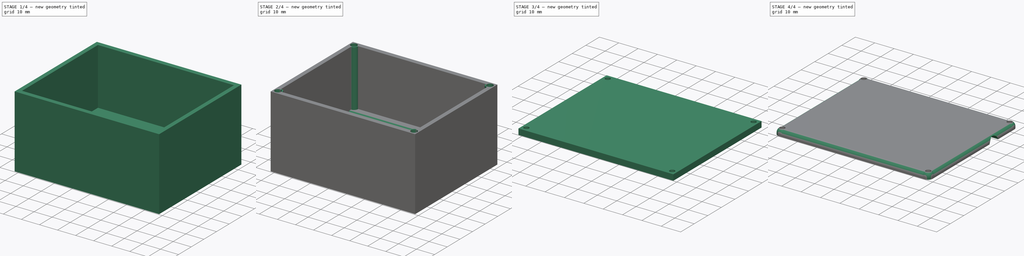
[diagram: build sequence overview — one tinted view per stage of 4, left to right]
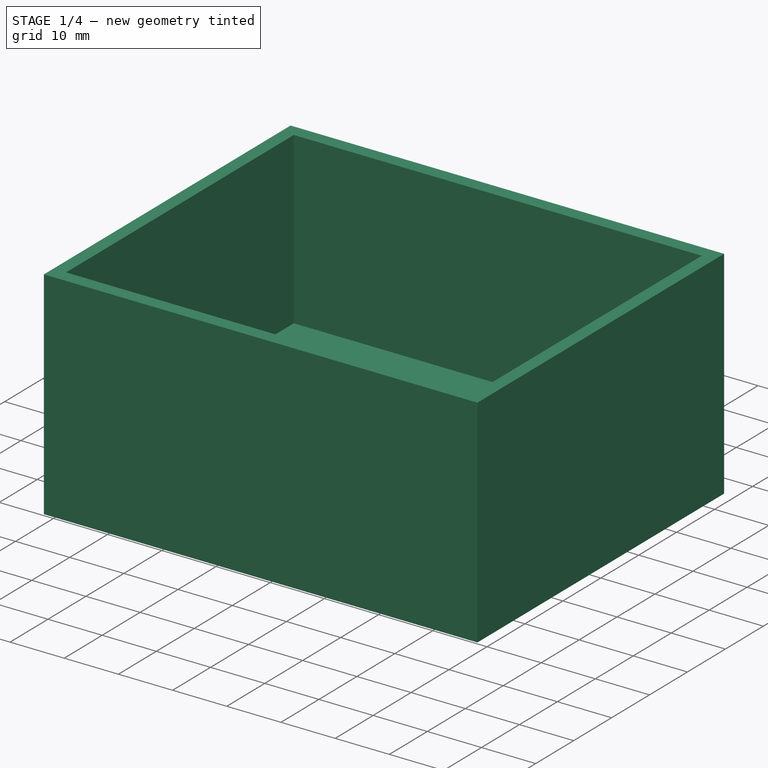
[diagram: stage 1 of 4 — iso view after this stage's code; geometry added in this stage tinted green]
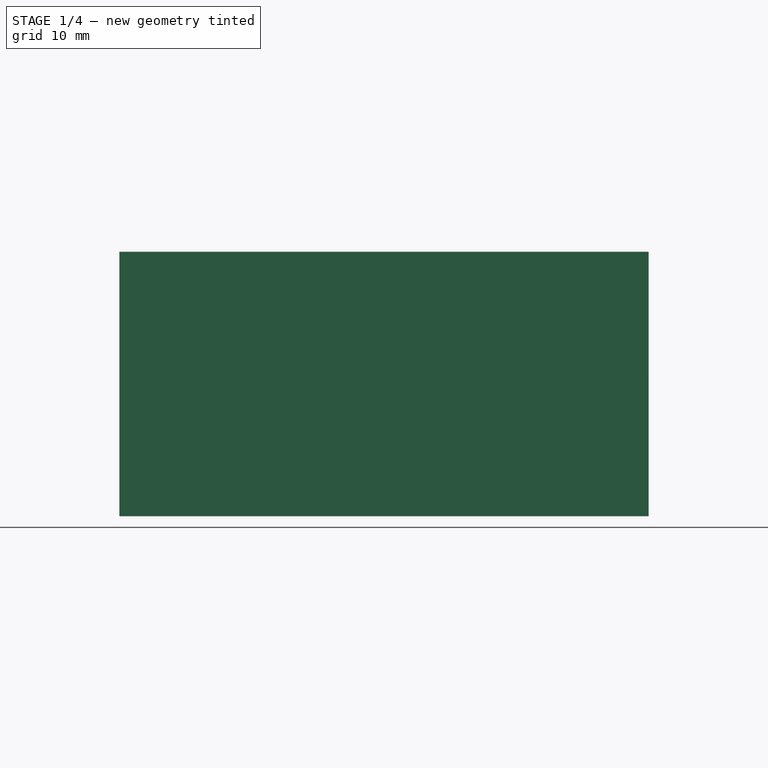
[diagram: stage 1 of 4 — front view after this stage's code; geometry added in this stage tinted green]
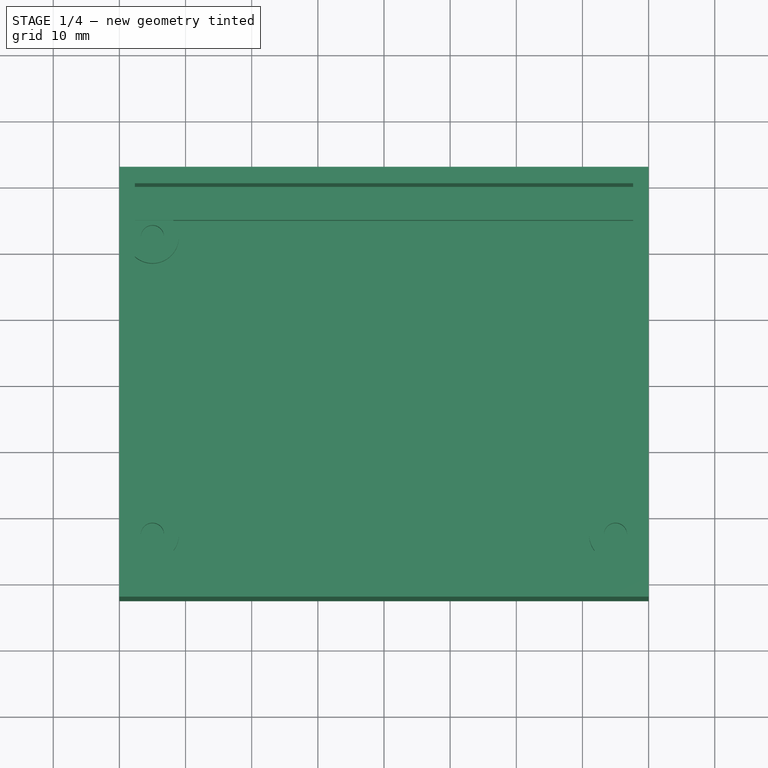
[diagram: stage 1 of 4 — top view after this stage's code; geometry added in this stage tinted green]
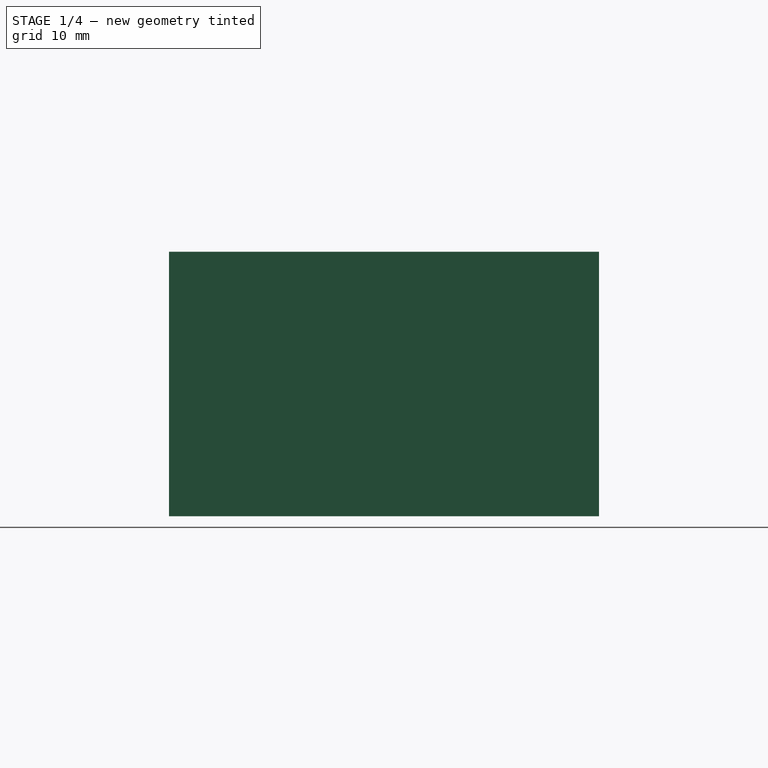
[diagram: stage 1 of 4 — right view after this stage's code; geometry added in this stage tinted green]
FCSTD DOCUMENT  (FreeCAD 1.0R39285 (Git))
Label: irrigation-controller-box
License: All rights reserved
LicenseURL: https://en.wikipedia.org/wiki/All_rights_reserved
objects: Sketcher::SketchObject×10, PartDesign::Pad×5, PartDesign::Pocket×4, PartDesign::Fillet×3, PartDesign::Chamfer×2, PartDesign::Body×2, PartDesign::ShapeBinder×1
note: 65 computed .brp shape members not serialized (recipe doc carries the construction recipe); baked Part::Feature solids carry a one-line shape summary decoded from their .brp

FEATURE [Sketcher::SketchObject] Sketch  label="Board"
  ArcFitTolerance = 1e-06
  AttachmentSupport = -> [XY_Plane]
  FullyConstrained = true
  MakeInternals = false
  MapMode = 5
  sketch-geometry (4):
    g0: LineSegment StartX=37.5 StartY=25 StartZ=0 EndX=-37.5 EndY=25 EndZ=0
    g1: LineSegment StartX=-37.5 StartY=25 StartZ=0 EndX=-37.5 EndY=-25 EndZ=0
    g2: LineSegment StartX=-37.5 StartY=-25 StartZ=0 EndX=37.5 EndY=-25 EndZ=0
    g3: LineSegment StartX=37.5 StartY=-25 StartZ=0 EndX=37.5 EndY=25 EndZ=0
  constraints (10):
    c: Coincident(g0,g1)
    c: Coincident(g1,g2)
    c: Coincident(g2,g3)
    c: Coincident(g3,g0)
    c: Horizontal(g2)
    c: Vertical(g3)
    c: DistanceX(g0,g0) = 75
    c: DistanceY(g1,g1) = 50
    c: Symmetric(g0,g1,g-1)
    c: Symmetric(g0,g0,g-2)
FEATURE [Sketcher::SketchObject] Sketch001  label="Box"
  ArcFitTolerance = 1e-06
  AttachmentSupport = -> [XY_Plane]
  ExternalGeometry = -> [Sketch]
  FullyConstrained = true
  MakeInternals = false
  MapMode = 5
  expr: Constraints[9] = .Constraints.thickness + 5 mm
  sketch-geometry (4):
    g0: LineSegment StartX=-40 StartY=32.5 StartZ=0 EndX=-40 EndY=-32.5 EndZ=0
    g1: LineSegment StartX=-40 StartY=-32.5 StartZ=0 EndX=40 EndY=-32.5 EndZ=0
    g2: LineSegment StartX=40 StartY=-32.5 StartZ=0 EndX=40 EndY=32.5 EndZ=0
    g3: LineSegment StartX=40 StartY=32.5 StartZ=0 EndX=-40 EndY=32.5 EndZ=0
  constraints (10):
    c: Coincident(g0,g1)
    c: Coincident(g1,g2)
    c: Coincident(g2,g3)
    c: Coincident(g3,g0)
    c: Vertical(g2)
    c: Horizontal(g1)
    c: Symmetric(g0,g2,g-2)
    c: Symmetric(g0,g0,g-1)
    c: Distance(g0,g-3) = 2.5  'thickness'
    c: Distance(g3,g-4) = 7.5
FEATURE [PartDesign::Pad] Pad  label="Box root"
  Direction = (0,0,1)
  Length = 40
  Length2 = 10
  Profile = -> Sketch001
  ReferenceAxis = -> Sketch001 [N_Axis]
  Refine = true
  Suppressed = false
  Type = 0
FEATURE [Sketcher::SketchObject] Sketch002
  ArcFitTolerance = 1e-06
  AttachmentSupport = -> [Pad]
  ExternalGeometry = -> [Sketch,Pad]
  FullyConstrained = true
  MakeInternals = false
  MapMode = 5
  Placement = pos=(0,0,40) rot=(0,0,1;0rad)
  expr: Constraints[6] = <<Box>>.Constraints.thickness
  sketch-geometry (4):
    g0: LineSegment StartX=-37.65 StartY=30 StartZ=0 EndX=-37.65 EndY=-30 EndZ=0
    g1: LineSegment StartX=-37.65 StartY=-30 StartZ=0 EndX=37.65 EndY=-30 EndZ=0
    g2: LineSegment StartX=37.65 StartY=-30 StartZ=0 EndX=37.65 EndY=30 EndZ=0
    g3: LineSegment StartX=37.65 StartY=30 StartZ=0 EndX=-37.65 EndY=30 EndZ=0
  constraints (10):
    c: Coincident(g0,g1)
    c: Coincident(g1,g2)
    c: Coincident(g2,g3)
    c: Coincident(g3,g0)
    c: Vertical(g2)
    c: Horizontal(g1)
    c: Distance(g-7,g3) = 2.5
    c: Symmetric(g0,g0,g-1)
    c: Distance(g-4,g0) = 0.15
    c: Symmetric(g0,g2,g-2)
FEATURE [PartDesign::Pocket] Pocket  label="Board hole"
  BaseFeature = -> Pad
  Direction = (0,0,-1)
  Length = 0
  Length2 = 5
  Offset = -2
  Profile = -> Sketch002
  ReferenceAxis = -> Sketch002 [N_Axis]
  Refine = true
  Suppressed = false
  Type = 3
  UpToFace = -> Pad [Face5]
FEATURE [Sketcher::SketchObject] Sketch003
  ArcFitTolerance = 1e-06
  AttachmentSupport = -> [Pocket]
  ExternalGeometry = -> [Sketch]
  FullyConstrained = true
  MakeInternals = false
  MapMode = 5
  Placement = pos=(0,0,2) rot=(0,0,1;0rad)
  expr: Constraints[10] = .Constraints.nut_d
  expr: Constraints[11] = .Constraints.support_d
  expr: Constraints[1] = .Constraints.center_offset
  expr: Constraints[7] = .Constraints.nut_d
  expr: Constraints[8] = .Constraints.support_d
  sketch-geometry (6):
    g0: Circle CenterX=-35 CenterY=22.5 CenterZ=0 NormalX=0 NormalY=0 NormalZ=1 AngleXU=0 Radius=4
    g1: Circle CenterX=-35 CenterY=22.5 CenterZ=0 NormalX=0 NormalY=0 NormalZ=1 AngleXU=0 Radius=1.75
    g2: Circle CenterX=-35 CenterY=-22.5 CenterZ=0 NormalX=0 NormalY=0 NormalZ=1 AngleXU=0 Radius=4
    g3: Circle CenterX=-35 CenterY=-22.5 CenterZ=0 NormalX=0 NormalY=0 NormalZ=1 AngleXU=0 Radius=1.75
    g4: Circle CenterX=35 CenterY=-22.5 CenterZ=0 NormalX=0 NormalY=0 NormalZ=1 AngleXU=0 Radius=4
    g5: Circle CenterX=35 CenterY=-22.5 CenterZ=0 NormalX=0 NormalY=0 NormalZ=1 AngleXU=0 Radius=1.75
  constraints (13):
    c: DistanceX(g-4,g0) = 2.5  'center_offset'
    c: DistanceY(g0,g-4) = 2.5
    c: Diameter(g0) = 8  'support_d'
    c: Coincident(g1,g0)
    c: Diameter(g1) = 3.5  'nut_d'
    c: Coincident(g3,g2)
    c: Symmetric(g2,g0,g-1)
    c: Diameter(g3) = 3.5
    c: Diameter(g2) = 8
    c: Coincident(g5,g4)
    c: Diameter(g5) = 3.5
    c: Diameter(g4) = 8
    c: Symmetric(g4,g2,g-2)
FEATURE [PartDesign::Pad] Pad001  label="Board screws"
  BaseFeature = -> Pocket
  Direction = (0,0,1)
  Length = 5
  Length2 = 10
  Profile = -> Sketch003
  ReferenceAxis = -> Sketch003 [N_Axis]
  Refine = true
  Suppressed = false
  Type = 0
FEATURE [Sketcher::SketchObject] Sketch004
  ArcFitTolerance = 1e-06
  AttachmentSupport = -> [Pad001]
  ExternalGeometry = -> [Pad001,Sketch]
  FullyConstrained = true
  MakeInternals = false
  MapMode = 5
  Placement = pos=(0,0,2) rot=(0,0,1;0rad)
  sketch-geometry (8):
    g0: LineSegment StartX=-37.65 StartY=30 StartZ=0 EndX=-37.65 EndY=25 EndZ=0
    g1: LineSegment StartX=-37.65 StartY=25 StartZ=0 EndX=37.65 EndY=25 EndZ=0
    g2: LineSegment StartX=37.65 StartY=25 StartZ=0 EndX=37.65 EndY=30 EndZ=0
    g3: LineSegment StartX=37.65 StartY=30 StartZ=0 EndX=-37.65 EndY=30 EndZ=0
    g4: LineSegment StartX=-37.65 StartY=-25 StartZ=0 EndX=-37.65 EndY=-30 EndZ=0
    g5: LineSegment StartX=-37.65 StartY=-30 StartZ=0 EndX=37.65 EndY=-30 EndZ=0
    g6: LineSegment StartX=37.65 StartY=-30 StartZ=0 EndX=37.65 EndY=-25 EndZ=0
    g7: LineSegment StartX=37.65 StartY=-25 StartZ=0 EndX=-37.65 EndY=-25 EndZ=0
  constraints (21):
    c: Coincident(g0,g1)
    c: Coincident(g1,g2)
    c: Coincident(g2,g3)
    c: Coincident(g3,g0)
    c: Vertical(g0)
    c: Vertical(g2)
    c: Horizontal(g1)
    c: Horizontal(g3)
    c: Coincident(g0,g-3)
    c: PointOnObject(g1,g-4)
    c: PointOnObject(g-3,g2)
    c: Coincident(g4,g5)
    c: Coincident(g5,g6)
    c: Coincident(g6,g7)
    c: Coincident(g7,g4)
    c: Vertical(g4)
    c: Vertical(g6)
    c: Horizontal(g5)
    c: Horizontal(g7)
    c: Symmetric(g4,g0,g-1)
    c: Symmetric(g6,g1,g-1)
FEATURE [PartDesign::Pad] Pad002  label="Board support001"
  BaseFeature = -> Pad001
  Direction = (0,0,1)
  Length = 6.6
  Length2 = 10
  Profile = -> Sketch004
  ReferenceAxis = -> Sketch004 [N_Axis]
  Refine = true
  Suppressed = false
  Type = 0
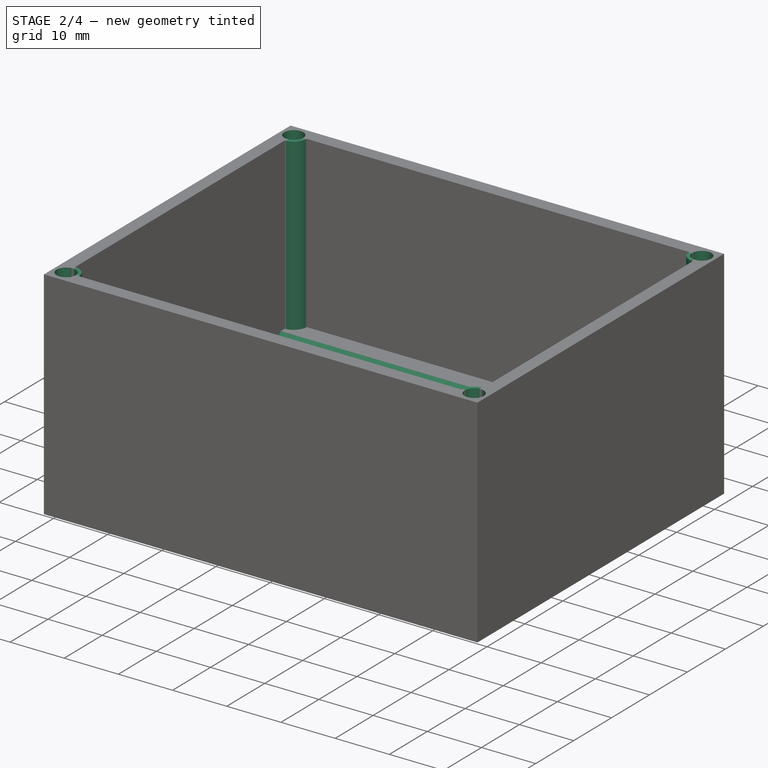
[diagram: stage 2 of 4 — iso view after this stage's code; geometry added in this stage tinted green]
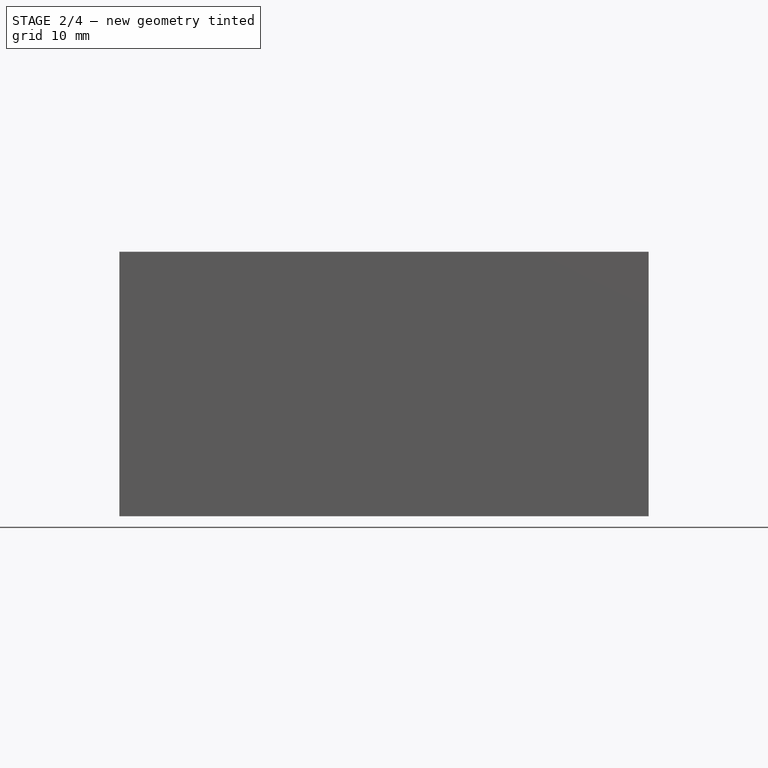
[diagram: stage 2 of 4 — front view after this stage's code; geometry added in this stage tinted green]
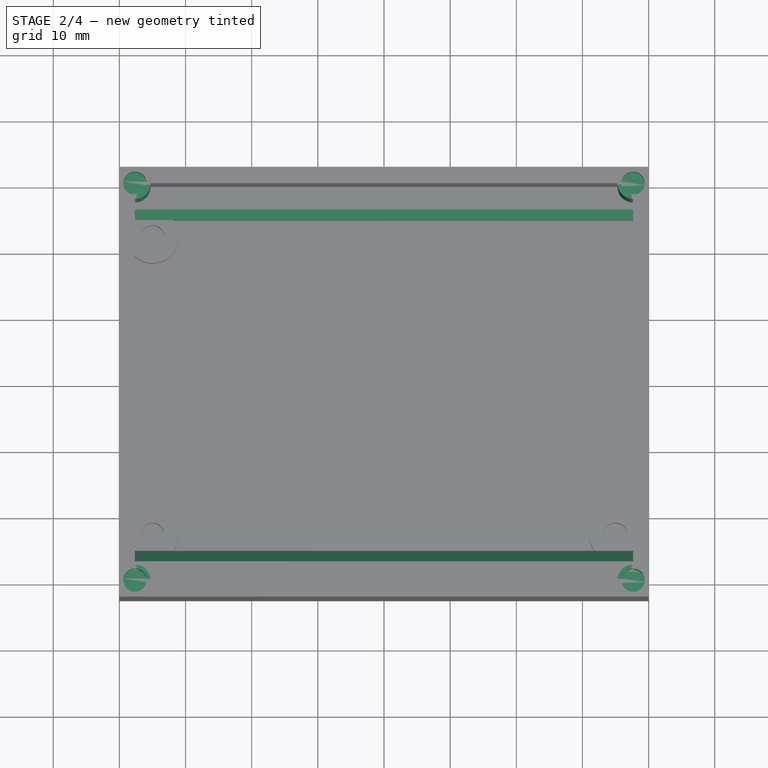
[diagram: stage 2 of 4 — top view after this stage's code; geometry added in this stage tinted green]
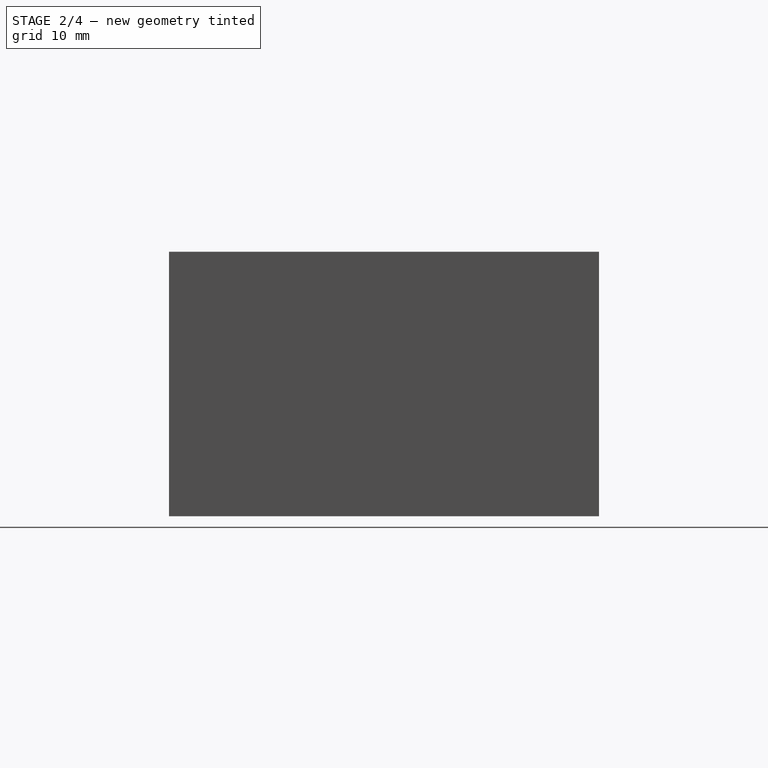
[diagram: stage 2 of 4 — right view after this stage's code; geometry added in this stage tinted green]
FEATURE [PartDesign::Chamfer] Chamfer  label="Board support"
  Angle = 45
  Base = -> Pad002 [Edge39,Edge59]
  BaseFeature = -> Pad002
  ChamferType = 0
  FlipDirection = false
  Refine = true
  Size = 1.6
  Size2 = 1
  SupportTransform = false
  Suppressed = false
  UseAllEdges = false
FEATURE [Sketcher::SketchObject] Sketch005
  ArcFitTolerance = 1e-06
  AttachmentSupport = -> [Chamfer]
  ExternalGeometry = -> [Chamfer]
  FullyConstrained = true
  MakeInternals = false
  MapMode = 5
  Placement = pos=(0,0,40) rot=(0,0,1;0rad)
  expr: Constraints[5] = .Constraints.cover_screw_support
  expr: Constraints[6] = .Constraints.cover_screw_support
  expr: Constraints[7] = .Constraints.cover_screw_support
  sketch-geometry (4):
    g0: Circle CenterX=-37.65 CenterY=-30 CenterZ=0 NormalX=0 NormalY=0 NormalZ=1 AngleXU=0 Radius=2.35
    g1: Circle CenterX=37.65 CenterY=-30 CenterZ=0 NormalX=0 NormalY=0 NormalZ=1 AngleXU=0 Radius=2.35
    g2: Circle CenterX=37.65 CenterY=30 CenterZ=0 NormalX=0 NormalY=0 NormalZ=1 AngleXU=0 Radius=2.35
    g3: Circle CenterX=-37.65 CenterY=30 CenterZ=0 NormalX=0 NormalY=0 NormalZ=1 AngleXU=0 Radius=2.35
  constraints (8):
    c: Coincident(g0,g-4)
    c: Coincident(g1,g-4)
    c: Coincident(g2,g-3)
    c: Coincident(g3,g-3)
    c: Diameter(g0) = 4.7  'cover_screw_support'
    c: Diameter(g1) = 4.7
    c: Diameter(g2) = 4.7
    c: Diameter(g3) = 4.7
FEATURE [PartDesign::Pad] Pad003  label="Screw support"
  BaseFeature = -> Chamfer
  Direction = (0,0,1)
  Length = 10
  Length2 = 10
  Profile = -> Sketch005
  ReferenceAxis = -> Sketch005 [N_Axis]
  Refine = true
  Reversed = true
  Suppressed = false
  Type = 2
FEATURE [Sketcher::SketchObject] Sketch006
  ArcFitTolerance = 1e-06
  AttachmentSupport = -> [Pad003]
  ExternalGeometry = -> [Pad003]
  FullyConstrained = true
  MakeInternals = false
  MapMode = 5
  Placement = pos=(0,0,40) rot=(0,0,1;0rad)
  expr: Constraints[10] = .Constraints.nut_d
  expr: Constraints[11] = .Constraints.nut_d
  expr: Constraints[9] = .Constraints.nut_d
  sketch-geometry (4):
    g0: Circle CenterX=-37.65 CenterY=30 CenterZ=0 NormalX=0 NormalY=0 NormalZ=1 AngleXU=0 Radius=1.75
    g1: Circle CenterX=-37.65 CenterY=-30 CenterZ=0 NormalX=0 NormalY=0 NormalZ=1 AngleXU=0 Radius=1.75
    g2: Circle CenterX=37.65 CenterY=-30 CenterZ=0 NormalX=0 NormalY=0 NormalZ=1 AngleXU=0 Radius=1.75
    g3: Circle CenterX=37.65 CenterY=30 CenterZ=0 NormalX=0 NormalY=0 NormalZ=1 AngleXU=0 Radius=1.75
  constraints (12):
    c: PointOnObject(g0,g-5)
    c: PointOnObject(g0,g-3)
    c: PointOnObject(g3,g-3)
    c: PointOnObject(g3,g-6)
    c: PointOnObject(g2,g-6)
    c: PointOnObject(g2,g-4)
    c: PointOnObject(g1,g-4)
    c: PointOnObject(g1,g-5)
    c: Diameter(g0) = 3.5  'nut_d'
    c: Diameter(g1) = 3.5
    c: Diameter(g2) = 3.5
    c: Diameter(g3) = 3.5
FEATURE [PartDesign::Pocket] Pocket001  label="Cover screws"
  BaseFeature = -> Pad003
  Direction = (0,0,-1)
  Length = 6
  Length2 = 5
  Profile = -> Sketch006
  ReferenceAxis = -> Sketch006 [N_Axis]
  Refine = true
  Suppressed = false
  Type = 0
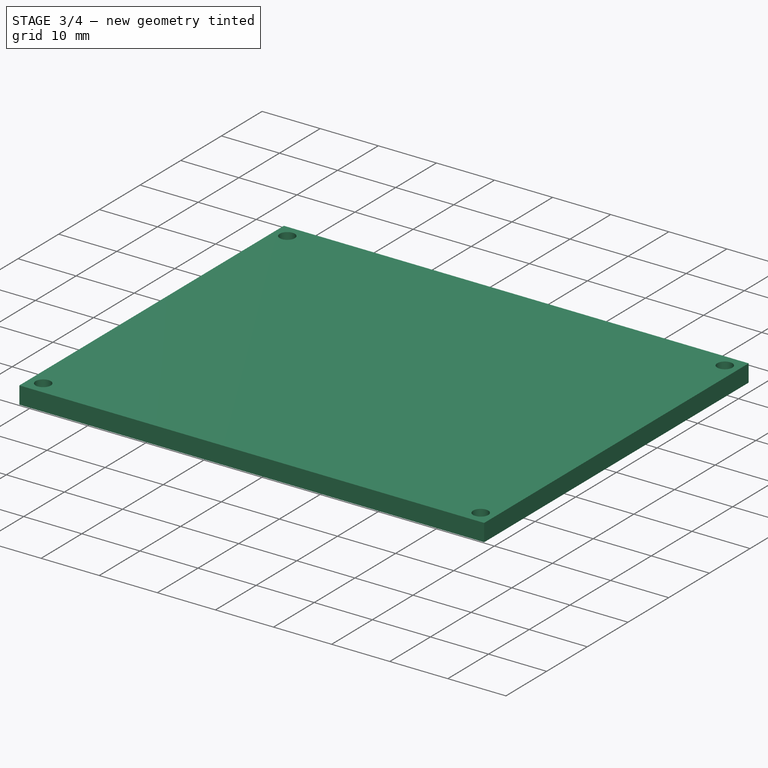
[diagram: stage 3 of 4 — iso view after this stage's code; geometry added in this stage tinted green]
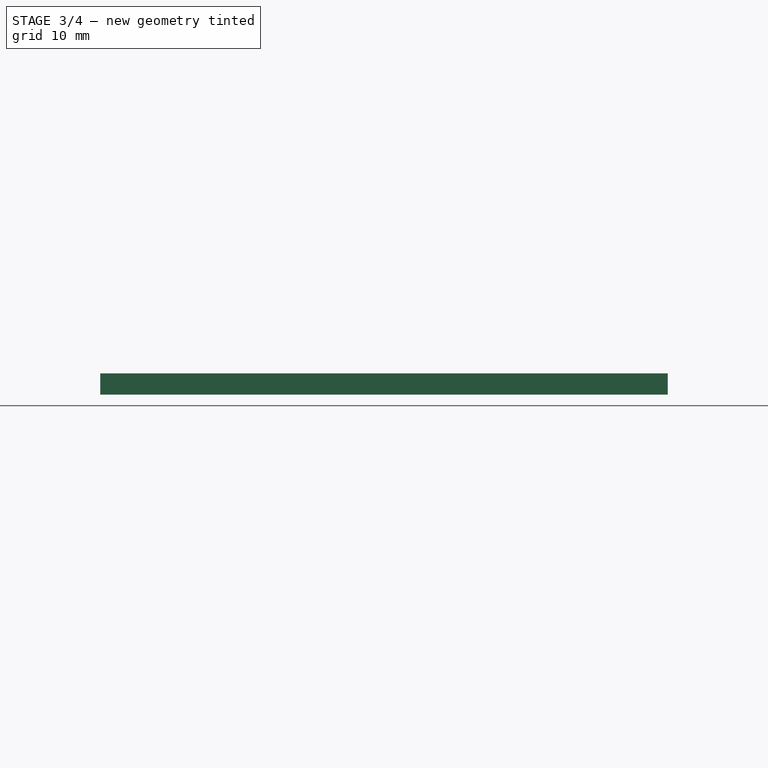
[diagram: stage 3 of 4 — front view after this stage's code; geometry added in this stage tinted green]
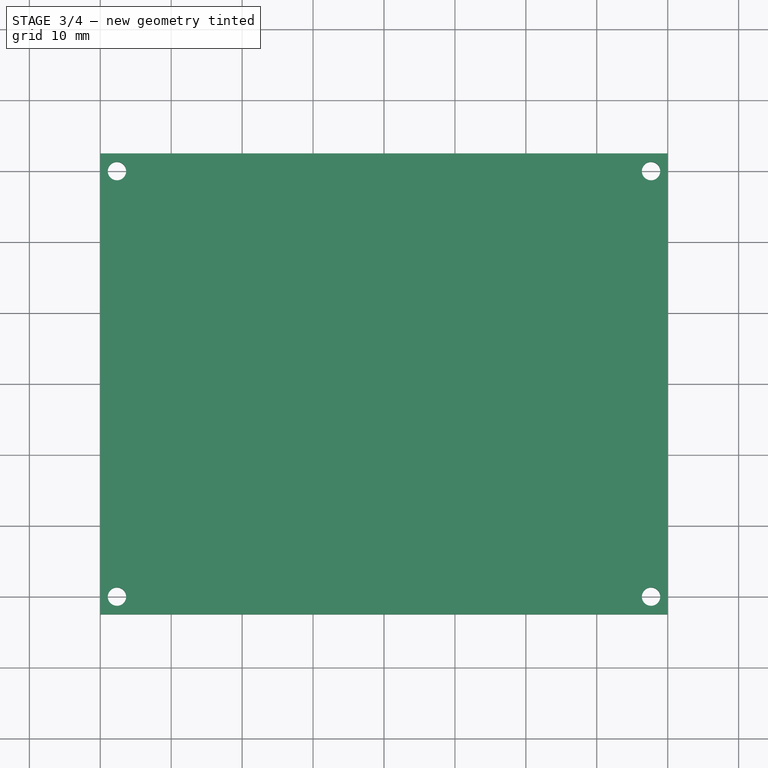
[diagram: stage 3 of 4 — top view after this stage's code; geometry added in this stage tinted green]
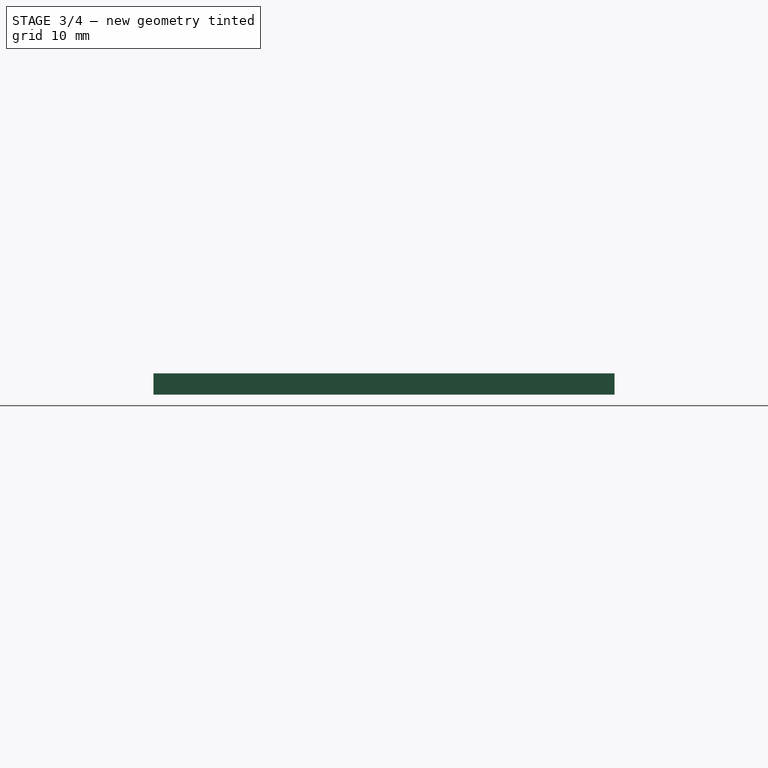
[diagram: stage 3 of 4 — right view after this stage's code; geometry added in this stage tinted green]
FEATURE [PartDesign::Fillet] Fillet
  Base = -> Pocket001 [Edge1,Edge4,Edge30,Edge9]
  BaseFeature = -> Pocket001
  Radius = 2.35
  Refine = true
  SupportTransform = false
  Suppressed = false
  UseAllEdges = false
FEATURE [Sketcher::SketchObject] Sketch007
  ArcFitTolerance = 1e-06
  AttachmentSupport = -> [Fillet]
  ExternalGeometry = -> [Fillet]
  FullyConstrained = true
  MakeInternals = false
  MapMode = 5
  Placement = pos=(40,0,0) rot=(0.57735,0.57735,0.57735;2.0944rad)
  sketch-geometry (7):
    g0: ArcOfCircle CenterX=15 CenterY=33.5 CenterZ=0 NormalX=0 NormalY=0 NormalZ=1 AngleXU=0 Radius=2.5 StartAngle=3.14159 EndAngle=6.28319
    g1: ArcOfCircle CenterX=15 CenterY=39.25 CenterZ=0 NormalX=0 NormalY=0 NormalZ=1 AngleXU=0 Radius=3.25 StartAngle=6.1484 EndAngle=9.55956
    g2: LineSegment [constr] StartX=15 StartY=39.25 StartZ=0 EndX=15 EndY=33.5 EndZ=0
    g3: LineSegment StartX=11.7795 StartY=38.8133 StartZ=0 EndX=12.5 EndY=33.5 EndZ=0
    g4: LineSegment StartX=18.2205 StartY=38.8133 StartZ=0 EndX=17.5 EndY=33.5 EndZ=0
    g5: LineSegment [constr] StartX=18.2205 StartY=38.8133 StartZ=0 EndX=11.7795 EndY=38.8133 EndZ=0
    g6: LineSegment [constr] StartX=17.5 StartY=33.5 StartZ=0 EndX=12.5 EndY=33.5 EndZ=0
  constraints (18):
    c: Diameter(g1) = 6.5
    c: Diameter(g0) = 5
    c: Coincident(g2,g1)
    c: Coincident(g2,g0)
    c: Vertical(g2)
    c: Coincident(g5,g3)
    c: Horizontal(g5)
    c: Coincident(g6,g4)
    c: Coincident(g6,g3)
    c: PointOnObject(g0,g6)
    c: Distance(g1,g-3) = 0.75
    c: Coincident(g5,g4)
    c: DistanceY(g2,g2) = 5.75
    c: Tangent(g1,g4) = 1.5708
    c: Tangent(g1,g3) = -1.5708
    c: Coincident(g0,g3)
    c: Coincident(g0,g4)
    c: Distance(g-3,g2) = 15
FEATURE [PartDesign::Pocket] Pocket002
  BaseFeature = -> Fillet
  Direction = (-1,0,0)
  Length = 5
  Length2 = 5
  Profile = -> Sketch007
  ReferenceAxis = -> Sketch007 [N_Axis]
  Refine = true
  Suppressed = false
  Type = 0
FEATURE [PartDesign::Body] Body  label="Box001"
  AllowCompound = false
  Group = -> [Sketch,Sketch001,Pad,Sketch002,Pocket,Sketch003,Pad001,Sketch004,Pad002,Chamfer,Sketch005,Pad003,Sketch006,Pocket001,Fillet,Sketch007,Pocket002]
  Origin = -> Origin
  Tip = -> Pocket002
FEATURE [PartDesign::ShapeBinder] ReferencePocket002
  Support = -> [Pocket002]
  TraceSupport = false
FEATURE [Sketcher::SketchObject] Sketch009
  ArcFitTolerance = 1e-06
  AttachmentSupport = -> [ReferencePocket002]
  ExternalGeometry = -> [ReferencePocket002]
  FullyConstrained = true
  MakeInternals = false
  MapMode = 5
  Placement = pos=(0,0,40) rot=(0,0,1;0rad)
  expr: Constraints[17] = .Constraints.screws_hole
  expr: Constraints[22] = .Constraints.screws_hole
  expr: Constraints[23] = .Constraints.screws_hole
  sketch-geometry (8):
    g0: Circle CenterX=-37.65 CenterY=-30 CenterZ=0 NormalX=0 NormalY=0 NormalZ=1 AngleXU=0 Radius=1.3
    g1: Circle CenterX=-37.65 CenterY=30 CenterZ=0 NormalX=0 NormalY=0 NormalZ=1 AngleXU=0 Radius=1.3
    g2: Circle CenterX=37.65 CenterY=30 CenterZ=0 NormalX=0 NormalY=0 NormalZ=1 AngleXU=0 Radius=1.3
    g3: Circle CenterX=37.65 CenterY=-30 CenterZ=0 NormalX=0 NormalY=0 NormalZ=1 AngleXU=0 Radius=1.3
    g4: LineSegment StartX=-40 StartY=32.5 StartZ=0 EndX=-40 EndY=-32.5 EndZ=0
    g5: LineSegment StartX=-40 StartY=-32.5 StartZ=0 EndX=40 EndY=-32.5 EndZ=0
    g6: LineSegment StartX=40 StartY=-32.5 StartZ=0 EndX=40 EndY=32.5 EndZ=0
    g7: LineSegment StartX=40 StartY=32.5 StartZ=0 EndX=-40 EndY=32.5 EndZ=0
  constraints (24):
    c: Coincident(g4,g5)
    c: Coincident(g5,g6)
    c: Coincident(g6,g7)
    c: Coincident(g7,g4)
    c: Vertical(g4)
    c: Vertical(g6)
    c: Horizontal(g5)
    c: Horizontal(g7)
    c: PointOnObject(g5,g-8)
    c: PointOnObject(g5,g-10)
    c: PointOnObject(g4,g-5)
    c: PointOnObject(g4,g-6)
    c: PointOnObject(g1,g-3)
    c: PointOnObject(g1,g-4)
    c: Diameter(g1) = 2.6  'screws_hole'
    c: PointOnObject(g0,g-4)
    c: PointOnObject(g0,g-11)
    c: Diameter(g0) = 2.6
    c: PointOnObject(g3,g-9)
    c: PointOnObject(g3,g-11)
    c: PointOnObject(g2,g-3)
    c: PointOnObject(g2,g-9)
    c: Diameter(g2) = 2.6
    c: Diameter(g3) = 2.6
FEATURE [PartDesign::Pad] Pad004
  Direction = (0,0,1)
  Length = 3
  Length2 = 10
  Profile = -> Sketch009
  ReferenceAxis = -> Sketch009 [N_Axis]
  Refine = true
  Suppressed = false
  Type = 0
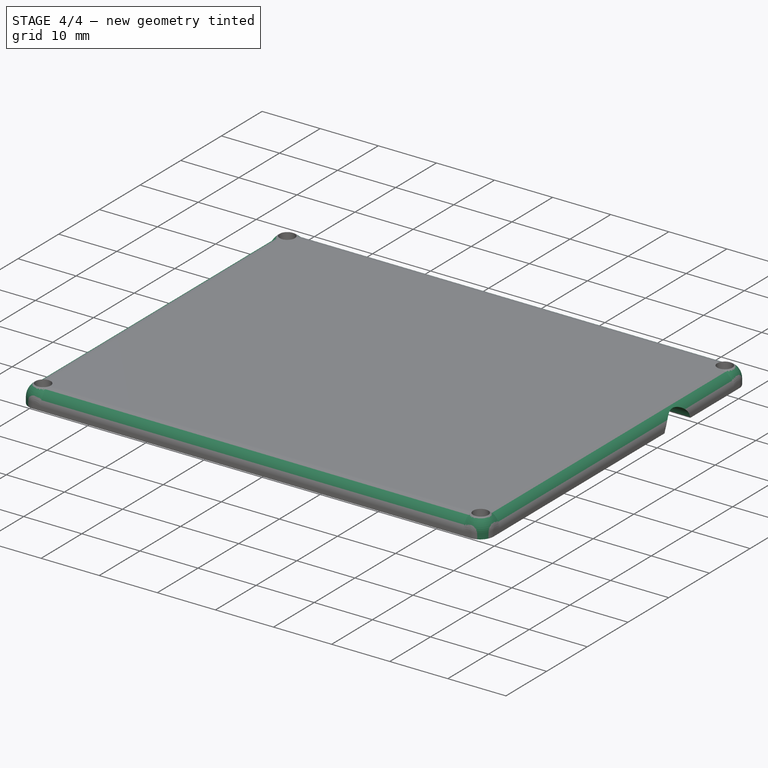
[diagram: stage 4 of 4 — iso view after this stage's code; geometry added in this stage tinted green]
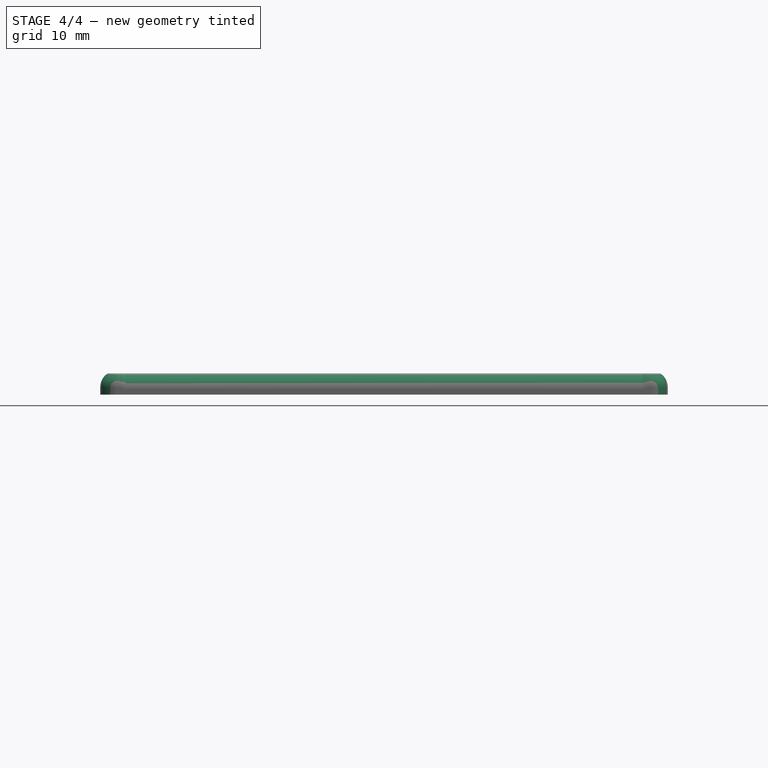
[diagram: stage 4 of 4 — front view after this stage's code; geometry added in this stage tinted green]
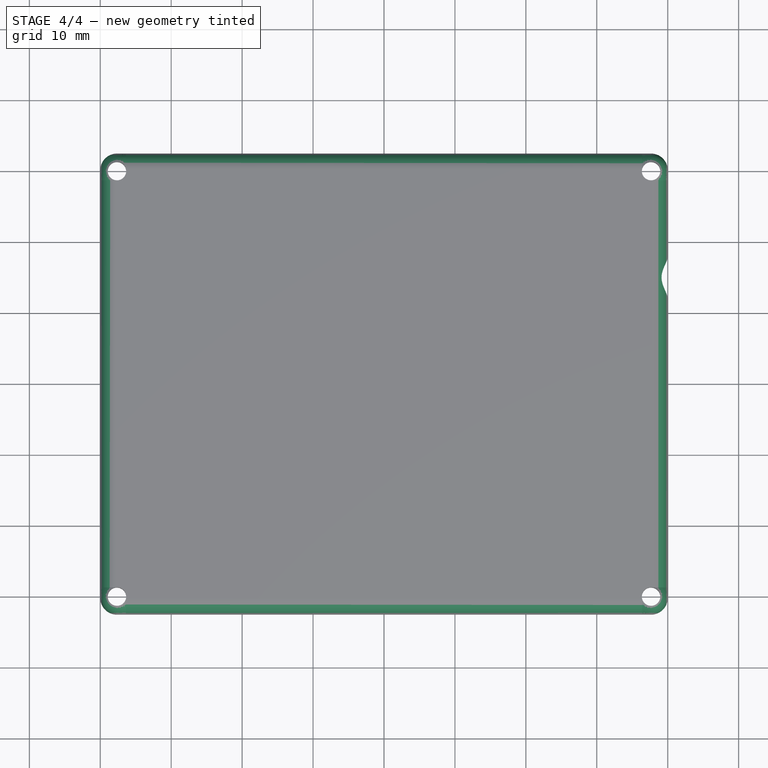
[diagram: stage 4 of 4 — top view after this stage's code; geometry added in this stage tinted green]
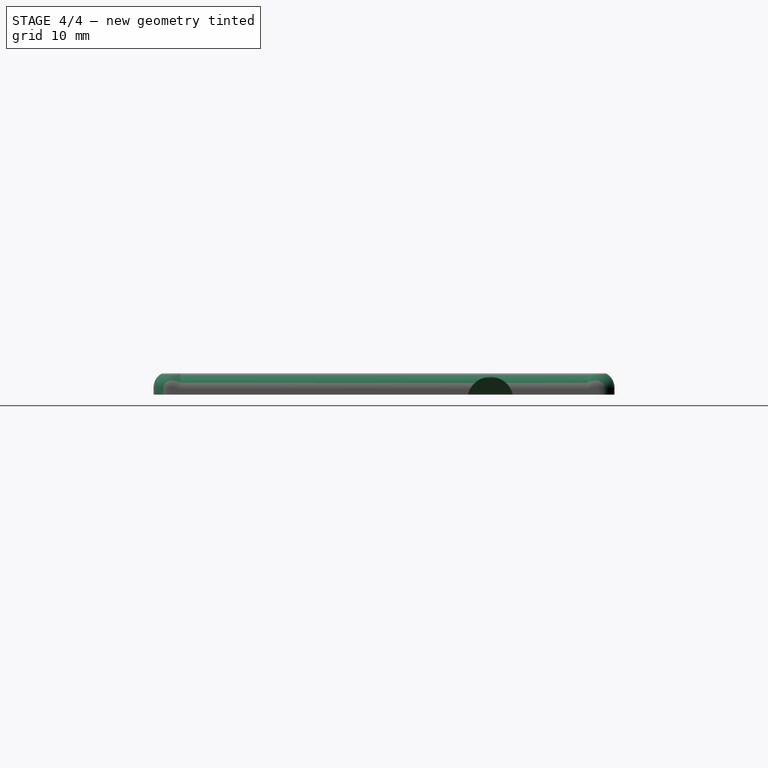
[diagram: stage 4 of 4 — right view after this stage's code; geometry added in this stage tinted green]
FEATURE [PartDesign::Fillet] Fillet001
  Base = -> Pad004 [Edge5,Edge8,Edge1,Edge2]
  BaseFeature = -> Pad004
  Radius = 2.35
  Refine = true
  SupportTransform = false
  Suppressed = false
  UseAllEdges = false
FEATURE [PartDesign::Fillet] Fillet002
  Base = -> Fillet001 [Edge24,Edge23,Edge21,Edge19,Edge4,Edge17,Edge20,Edge22]
  BaseFeature = -> Fillet001
  Radius = 2.3
  Refine = true
  SupportTransform = false
  Suppressed = false
  UseAllEdges = false
FEATURE [Sketcher::SketchObject] Sketch010
  ArcFitTolerance = 1e-06
  AttachmentSupport = -> [Fillet002]
  ExternalGeometry = -> [Fillet002]
  FullyConstrained = true
  MakeInternals = false
  MapMode = 5
  Placement = pos=(40,0,0) rot=(0.57735,0.57735,0.57735;2.0944rad)
  sketch-geometry (1):
    g0: Circle CenterX=15 CenterY=39.25 CenterZ=0 NormalX=0 NormalY=0 NormalZ=1 AngleXU=0 Radius=3.25
  constraints (3):
    c: Diameter(g0) = 6.5
    c: Distance(g0,g-2) = 15
    c: Distance(g0,g-3) = 3.75
FEATURE [PartDesign::Pocket] Pocket003
  BaseFeature = -> Fillet002
  Direction = (-1,0,0)
  Length = 10
  Length2 = 5
  Profile = -> Sketch010
  ReferenceAxis = -> Sketch010 [N_Axis]
  Refine = true
  Suppressed = false
  Type = 0
FEATURE [PartDesign::Chamfer] Chamfer001
  Angle = 45
  Base = -> Pocket003 [Edge17]
  BaseFeature = -> Pocket003
  ChamferType = 0
  FlipDirection = false
  Refine = true
  Size = 2.35
  Size2 = 1
  SupportTransform = false
  Suppressed = false
  UseAllEdges = false
FEATURE [PartDesign::Body] Body001  label="Cover"
  AllowCompound = false
  Group = -> [ReferencePocket002,Sketch009,Pad004,Fillet001,Fillet002,Sketch010,Pocket003,Chamfer001]
  Origin = -> Origin001
  Tip = -> Chamfer001
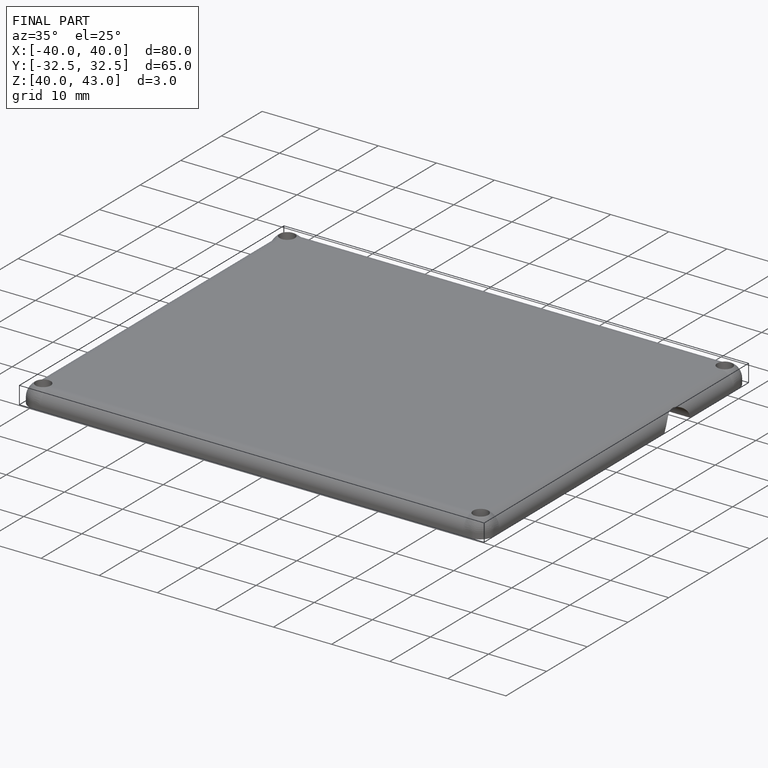
[diagram: finished part — iso view with bounding-box wireframe]
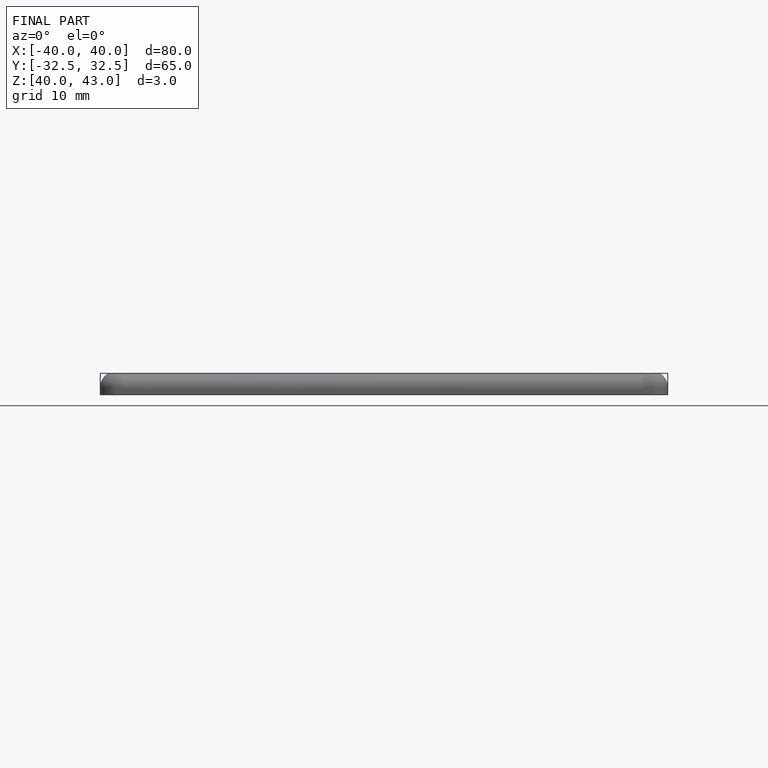
[diagram: finished part — front view with bounding-box wireframe]
